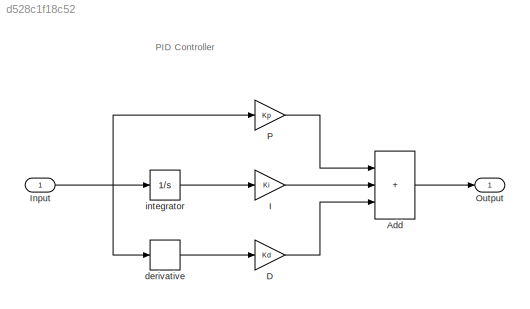
MODEL slx_d528c1f18c52
KIND model
CONFIG AbsTol = auto
CONFIG EnableMultiTasking = off
CONFIG FixedStep = auto
CONFIG MaxStep = auto
CONFIG MinStep = auto
CONFIG RelTol = 1e-3
CONFIG SampleTimeConstraint = Unconstrained
CONFIG SolverName = VariableStepAuto
CONFIG StartTime = 0.0
CONFIG StopTime = 10.0
BLOCK [Sum] Add
  IconShape = rectangular
  Inputs = +++
  Ports = [3, 1]
BLOCK [Gain] D
  Gain = Kd
BLOCK [Gain] I
  Gain = Ki
BLOCK [Inport] Input
  OutDataTypeStr = double
  PortDimensions = 1
  SampleTime = 0
  SamplingMode = Sample based
  SignalType = real
BLOCK [Outport] Output
  OutDataTypeStr = double
  PortDimensions = 1
  SampleTime = 0
  SamplingMode = Sample based
  SignalType = real
BLOCK [Gain] P
  Gain = Kp
BLOCK [Derivative] derivative
BLOCK [Integrator] integrator
  Ports = [1, 1]
ANNOTATION (root): PID Controller
LINE Add:1 -> Output:1
LINE D:1 -> Add:3
LINE I:1 -> Add:2
NET Input:1 -> P:1, derivative:1, integrator:1
LINE P:1 -> Add:1
LINE derivative:1 -> D:1
LINE integrator:1 -> I:1
note: NET lines group one-source signal fan-out (src -> all destinations, sorted); 1:1 wires keep LINE
